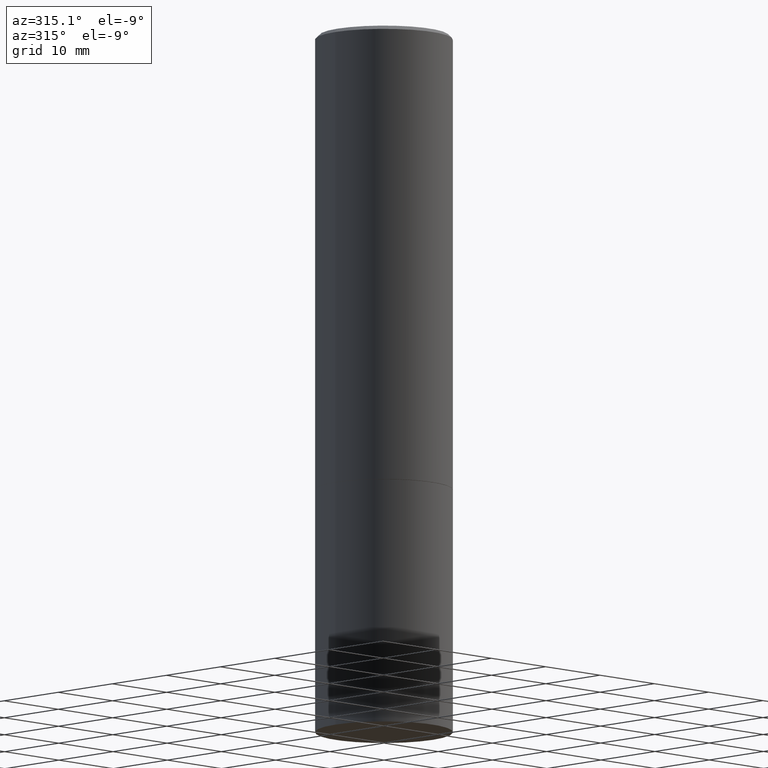
[diagram: clean part render]
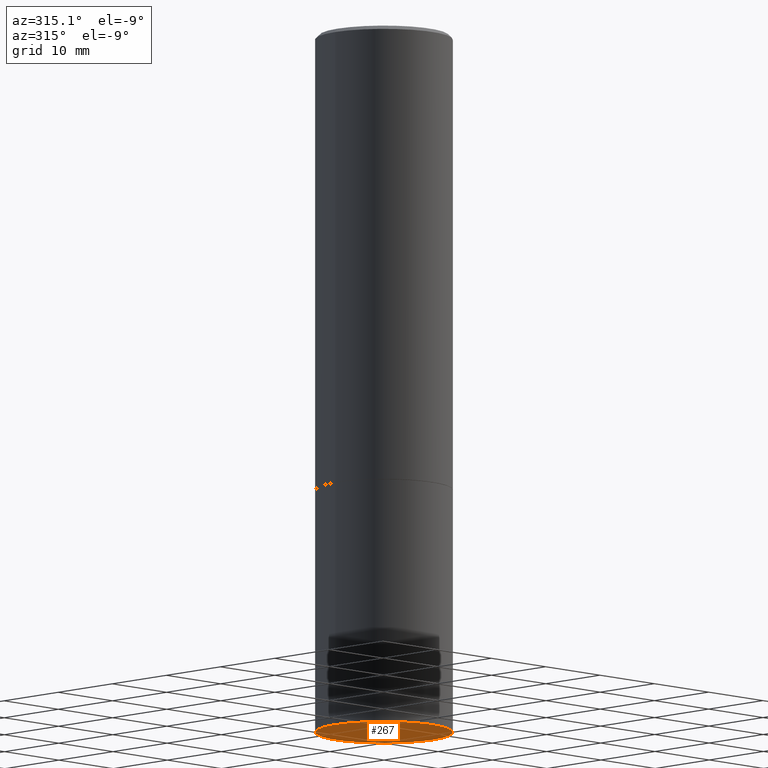
[diagram: same view with one face highlighted and labeled with its STEP entity id]
A machine part, auxiliary view. The second image highlights one B-rep face of the part: STEP entity #267.
In plain terms, the highlighted planar face has unit normal (0, -0, -1).
Its self-contained STEP definition (entity closure, byte-faithful):
#4 = CIRCLE ( 'NONE', #339, 0.3543499999999999983 ) ;
#15 = DIRECTION ( 'NONE',  ( -2.445468806185136597E-29, 3.491481338843145583E-15, 1.000000000000000000 ) ) ;
#49 = DIRECTION ( 'NONE',  ( -2.445468806185136597E-29, 3.491481338843145583E-15, 1.000000000000000000 ) ) ;
#54 = VERTEX_POINT ( 'NONE', #351 ) ;
#59 = DIRECTION ( 'NONE',  ( 2.438088387897960049E-29, -3.491481338843145188E-15, -1.000000000000000000 ) ) ;
#87 = CARTESIAN_POINT ( 'NONE',  ( 0.3543499999999999983, -1.512055823412800029E-14, -3.621999999999999886 ) ) ;
#106 = CIRCLE ( 'NONE', #195, 0.3543499999999999983 ) ;
#116 = PLANE ( 'NONE',  #346 ) ;
#130 = VERTEX_POINT ( 'NONE', #87 ) ;
#152 = CARTESIAN_POINT ( 'NONE',  ( 8.857488016002564476E-29, -1.264614540928987199E-14, -3.621999999999999886 ) ) ;
#173 = FACE_OUTER_BOUND ( 'NONE', #243, .T. ) ;
#189 = CARTESIAN_POINT ( 'NONE',  ( 8.857488016002564476E-29, -1.264614540928987199E-14, -3.621999999999999886 ) ) ;
#192 = EDGE_CURVE ( 'NONE', #54, #130, #106, .T. ) ;
#195 = AXIS2_PLACEMENT_3D ( 'NONE', #152, #15, #233 ) ;
#197 = ORIENTED_EDGE ( 'NONE', *, *, #192, .F. ) ;
#221 = DIRECTION ( 'NONE',  ( 1.000000000000000000, -6.982962677686265922E-15, 0.000000000000000000 ) ) ;
#233 = DIRECTION ( 'NONE',  ( 1.000000000000000000, -6.982962677686265922E-15, 0.000000000000000000 ) ) ;
#241 = DIRECTION ( 'NONE',  ( -1.000000000000000000, 6.982962677686265922E-15, -4.876176775795935793E-29 ) ) ;
#243 = EDGE_LOOP ( 'NONE', ( #323, #197 ) ) ;
#267 = ADVANCED_FACE ( 'NONE', ( #173 ), #116, .T. ) ;
#308 = CARTESIAN_POINT ( 'NONE',  ( 2.474412824838217047E-15, 0.3543499999999873973, -3.622000000000000774 ) ) ;
#323 = ORIENTED_EDGE ( 'NONE', *, *, #366, .F. ) ;
#339 = AXIS2_PLACEMENT_3D ( 'NONE', #189, #49, #221 ) ;
#346 = AXIS2_PLACEMENT_3D ( 'NONE', #308, #59, #241 ) ;
#351 = CARTESIAN_POINT ( 'NONE',  ( -0.3543499999999999983, -7.929053129786659628E-15, -3.621999999999999886 ) ) ;
#366 = EDGE_CURVE ( 'NONE', #130, #54, #4, .T. ) ;